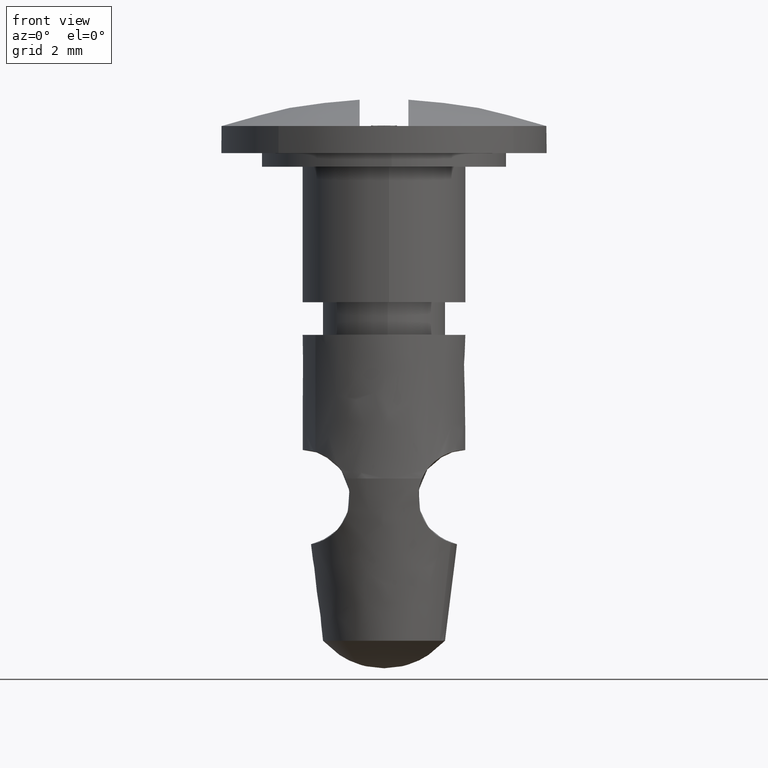
[diagram: clean part render]
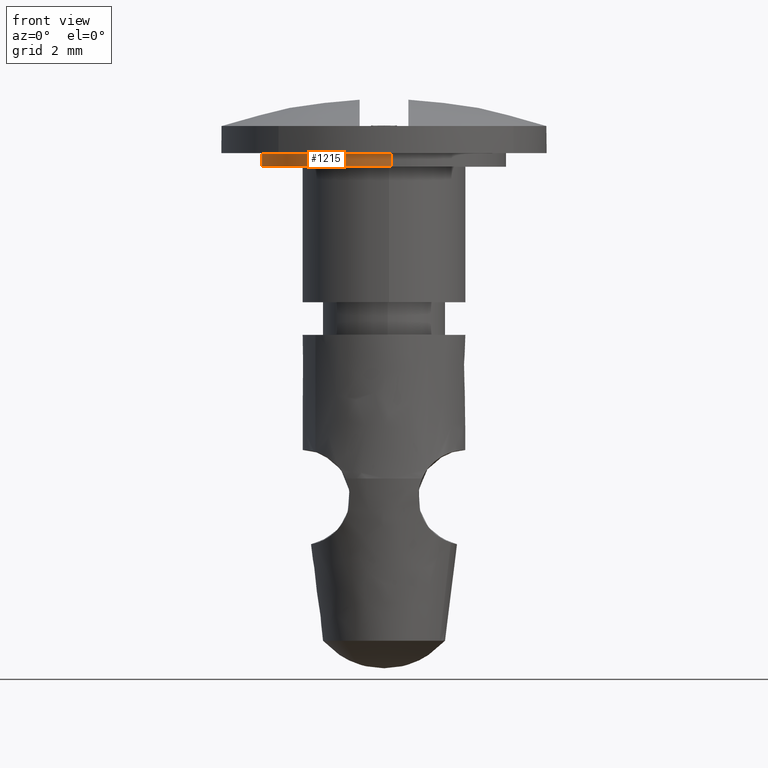
[diagram: same view with one face highlighted and labeled with its STEP entity id]
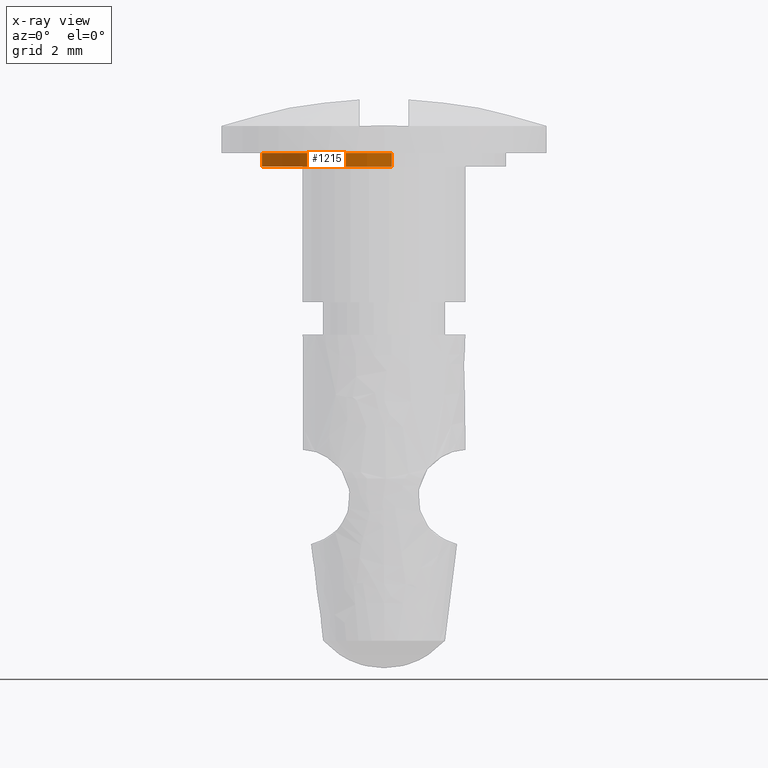
[diagram: x-ray of the same camera — body ghosted, the highlighted face saturated]
A machine part, front view. The second image highlights one B-rep face of the part: STEP entity #1215.
The next image is the same camera in x-ray: the body ghosted, the highlighted face saturated — about 0% of this face is hidden behind the body in this view.
In plain terms, the highlighted face is a freeform B-spline surface patch.
Its self-contained STEP definition (entity closure, byte-faithful):
#1052=CARTESIAN_POINT('',(-0.491053040889807,4.468542989292198,18.500000000000021));
#1053=VERTEX_POINT('',#1052);
#1071=CARTESIAN_POINT('',(-0.491053053398156,4.468542987805396,19.0));
#1072=VERTEX_POINT('',#1071);
#1073=CARTESIAN_POINT('',(-0.491053053398156,4.468542987805396,19.0));
#1074=CARTESIAN_POINT('',(-0.491053040889807,4.468542989292198,18.500000000000021));
#1075=QUASI_UNIFORM_CURVE('',1,(#1073,#1074),.UNSPECIFIED.,.F.,.U.);
#1076=EDGE_CURVE('',#1072,#1053,#1075,.T.);
#1095=CARTESIAN_POINT('',(0.314815079964139,-4.491606797664845,19.0));
#1096=VERTEX_POINT('',#1095);
#1110=CARTESIAN_POINT('',(0.314815038096533,-4.491606800225515,18.499999999999840));
#1111=VERTEX_POINT('',#1110);
#1112=CARTESIAN_POINT('',(0.314815079964139,-4.491606797664845,19.0));
#1113=CARTESIAN_POINT('',(0.314815038096533,-4.491606800225515,18.499999999999840));
#1114=QUASI_UNIFORM_CURVE('',1,(#1112,#1113),.UNSPECIFIED.,.F.,.U.);
#1115=EDGE_CURVE('',#1096,#1111,#1114,.T.);
#1133=CARTESIAN_POINT('',(0.314818427906866,-4.491606592898400,19.012499999999999));
#1134=CARTESIAN_POINT('',(-4.176788164991534,-4.766325020805256,19.012500000000006));
#1135=CARTESIAN_POINT('',(-4.451506592898390,-0.274718427906856,19.012499999999999));
#1136=CARTESIAN_POINT('',(-4.710937885296364,3.966945708777753,19.012500000000003));
#1137=CARTESIAN_POINT('',(-0.491054055955404,4.468542868636499,19.012500000000003));
#1138=CARTESIAN_POINT('',(0.314818427906866,-4.491606592898400,18.487187500000001));
#1139=CARTESIAN_POINT('',(-4.176788164991534,-4.766325020805256,18.487187500000005));
#1140=CARTESIAN_POINT('',(-4.451506592898390,-0.274718427906856,18.487187500000001));
#1141=CARTESIAN_POINT('',(-4.710937885296364,3.966945708777753,18.487187499999997));
#1142=CARTESIAN_POINT('',(-0.491054055955404,4.468542868636499,18.487187500000001));
#1150=(BOUNDED_SURFACE()B_SPLINE_SURFACE(2,1,((#1133,#1138),(#1134,#1139),(#1135,#1140),(#1136,#1141),(#1137,#1142)),.UNSPECIFIED.,.F.,.F.,.U.)B_SPLINE_SURFACE_WITH_KNOTS((3,2,3),(2,2),(0.0,7.455844122715709,14.613454480522790),(0.0,1.0),.UNSPECIFIED.)GEOMETRIC_REPRESENTATION_ITEM()RATIONAL_B_SPLINE_SURFACE(((1.0,1.0),(0.707106781186548,0.707106781186548),(1.0,1.0),(0.718822509939086,0.718822509939086),(0.977505800795127,0.977505800795127)))REPRESENTATION_ITEM('')SURFACE());
#1151=CARTESIAN_POINT('',(-4.459899999999990,0.0,18.500000000000000));
#1152=VERTEX_POINT('',#1151);
#1153=CARTESIAN_POINT('',(-4.459899999999990,0.0,18.500000000000000));
#1154=CARTESIAN_POINT('',(-4.459899999999990,3.996786281074636,18.499999999999996));
#1155=CARTESIAN_POINT('',(-0.491053040889807,4.468542989292198,18.500000000000021));
#1163=(BOUNDED_CURVE()B_SPLINE_CURVE(2,(#1153,#1154,#1155),.UNSPECIFIED.,.F.,.U.)B_SPLINE_CURVE_WITH_KNOTS((3,3),(0.0,0.229562511906098),.UNSPECIFIED.)CURVE()GEOMETRIC_REPRESENTATION_ITEM()RATIONAL_B_SPLINE_CURVE((1.0,0.731050787875686,0.956026829434759))REPRESENTATION_ITEM(''));
#1164=EDGE_CURVE('',#1152,#1053,#1163,.T.);
#1165=ORIENTED_EDGE('',*,*,#1164,.F.);
#1166=CARTESIAN_POINT('',(0.314815038096533,-4.491606800225515,18.499999999999844));
#1167=CARTESIAN_POINT('',(0.177585735186241,-4.500000000000000,18.499999999999996));
#1168=CARTESIAN_POINT('',(0.040100000000010,-4.500000000000000,18.500000000000000));
#1169=CARTESIAN_POINT('',(-4.459899999999990,-4.500000000000000,18.500000000000004));
#1170=CARTESIAN_POINT('',(-4.459899999999990,0.0,18.500000000000000));
#1178=(BOUNDED_CURVE()B_SPLINE_CURVE(2,(#1166,#1167,#1168,#1169,#1170),.UNSPECIFIED.,.F.,.U.)B_SPLINE_CURVE_WITH_KNOTS((3,2,3),(0.739333092462845,0.750000000000000,1.0),.UNSPECIFIED.)CURVE()GEOMETRIC_REPRESENTATION_ITEM()RATIONAL_B_SPLINE_CURVE((0.976072320761488,0.987502940466629,1.0,0.707106781186547,1.0))REPRESENTATION_ITEM(''));
#1179=EDGE_CURVE('',#1111,#1152,#1178,.T.);
#1180=ORIENTED_EDGE('',*,*,#1179,.F.);
#1181=ORIENTED_EDGE('',*,*,#1115,.F.);
#1182=CARTESIAN_POINT('',(-4.459899999999990,0.0,19.0));
#1183=VERTEX_POINT('',#1182);
#1184=CARTESIAN_POINT('',(0.314815079964140,-4.491606797664845,19.0));
#1185=CARTESIAN_POINT('',(0.177585756178740,-4.500000000000000,19.000000000000007));
#1186=CARTESIAN_POINT('',(0.040100000000010,-4.500000000000000,19.0));
#1187=CARTESIAN_POINT('',(-4.459899999999990,-4.500000000000000,18.999999999999996));
#1188=CARTESIAN_POINT('',(-4.459899999999990,0.0,19.0));
#1196=(BOUNDED_CURVE()B_SPLINE_CURVE(2,(#1184,#1185,#1186,#1187,#1188),.UNSPECIFIED.,.F.,.U.)B_SPLINE_CURVE_WITH_KNOTS((3,2,3),(0.739333090854484,0.750000000000000,1.0),.UNSPECIFIED.)CURVE()GEOMETRIC_REPRESENTATION_ITEM()RATIONAL_B_SPLINE_CURVE((0.976072317314461,0.987502938582317,1.0,0.707106781186547,1.0))REPRESENTATION_ITEM(''));
#1197=EDGE_CURVE('',#1096,#1183,#1196,.T.);
#1198=ORIENTED_EDGE('',*,*,#1197,.T.);
#1199=CARTESIAN_POINT('',(-4.459899999999990,0.0,19.0));
#1200=CARTESIAN_POINT('',(-4.459899999999990,3.996786269808071,19.0));
#1201=CARTESIAN_POINT('',(-0.491053053398156,4.468542987805396,19.000000000000007));
#1209=(BOUNDED_CURVE()B_SPLINE_CURVE(2,(#1199,#1200,#1201),.UNSPECIFIED.,.F.,.U.)B_SPLINE_CURVE_WITH_KNOTS((3,3),(0.0,0.229562511433024),.UNSPECIFIED.)CURVE()GEOMETRIC_REPRESENTATION_ITEM()RATIONAL_B_SPLINE_CURVE((1.0,0.731050788429927,0.956026828507515))REPRESENTATION_ITEM(''));
#1210=EDGE_CURVE('',#1183,#1072,#1209,.T.);
#1211=ORIENTED_EDGE('',*,*,#1210,.T.);
#1212=ORIENTED_EDGE('',*,*,#1076,.T.);
#1213=EDGE_LOOP('',(#1165,#1180,#1181,#1198,#1211,#1212));
#1214=FACE_OUTER_BOUND('',#1213,.T.);
#1215=ADVANCED_FACE('',(#1214),#1150,.T.);